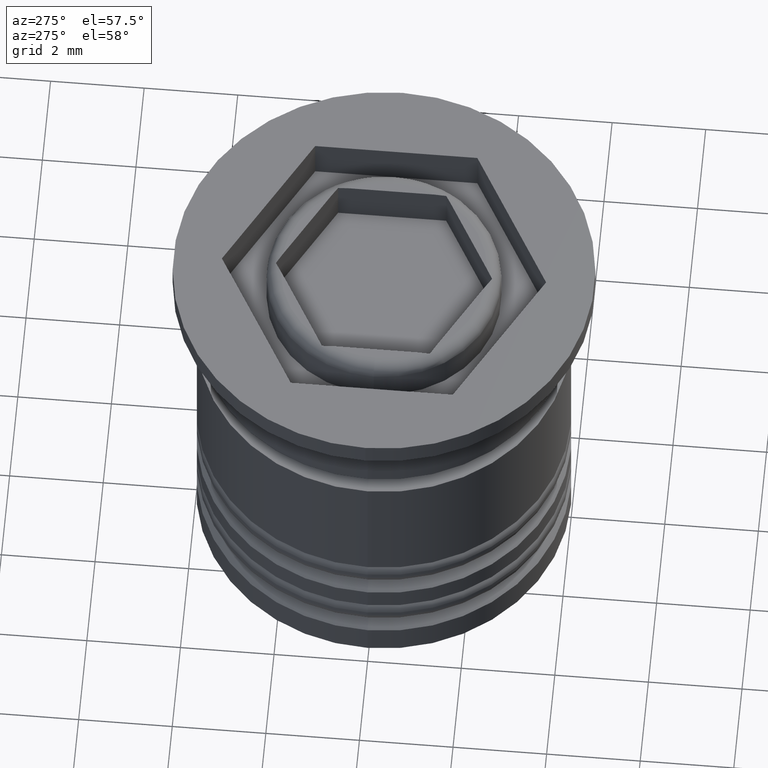
[diagram: clean part render]
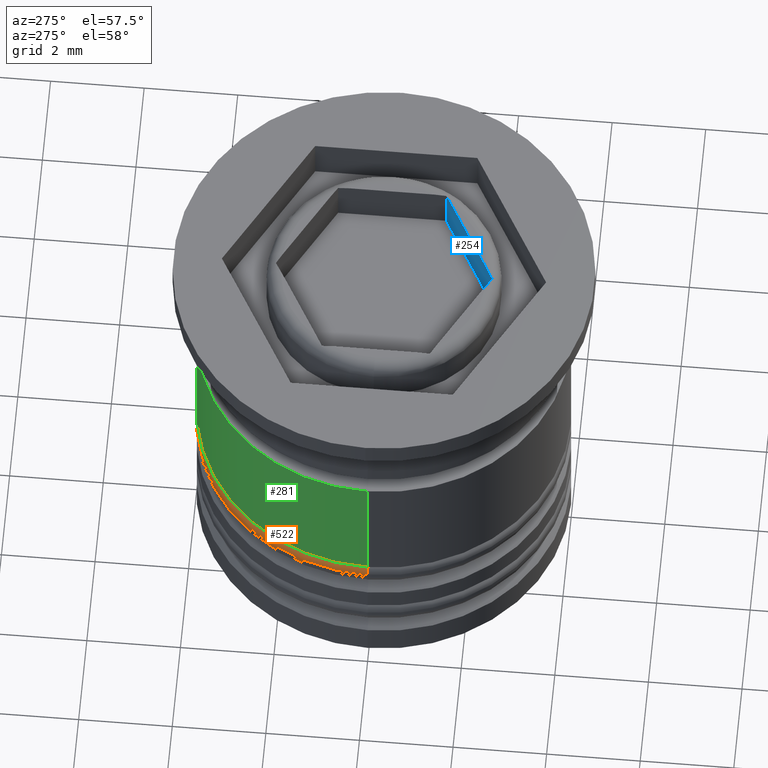
[diagram: same view with three faces highlighted in distinct colors, each labeled with its STEP entity id]
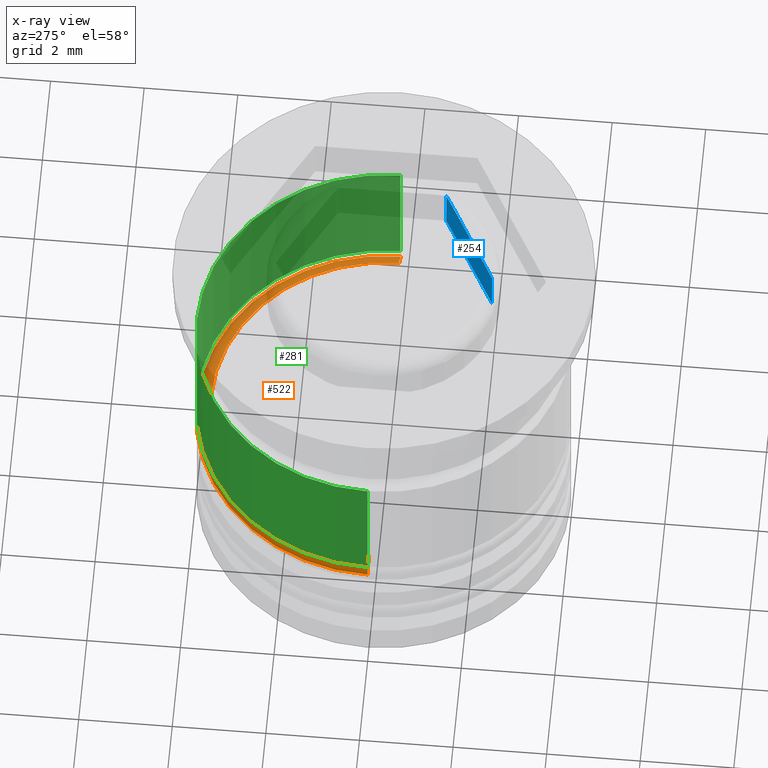
[diagram: x-ray of the same camera — body ghosted, the three highlighted faces saturated]
A machine part, auxiliary view with three faces highlighted in distinct colors.
The next image is the same camera in x-ray (body ghosted, the three faces saturated) — at least one of them is partly hidden behind the body in this view.
Their STEP definitions:

[orange] entity #522 — the highlighted toroidal blend (fillet) surface has major radius 3.7 mm and minor (blend) radius 0.3 mm.
#6 = ORIENTED_EDGE ( 'NONE', *, *, #51, .F. ) ;
#23 = AXIS2_PLACEMENT_3D ( 'NONE', #1819, #1844, #1651 ) ;
#51 = EDGE_CURVE ( 'NONE', #825, #936, #1398, .T. ) ;
#73 = DIRECTION ( 'NONE',  ( -1.000000000000000000, 0.000000000000000000, 0.000000000000000000 ) ) ;
#111 = DIRECTION ( 'NONE',  ( -0.000000000000000000, -1.000000000000000000, -0.000000000000000000 ) ) ;
#151 = CIRCLE ( 'NONE', #1599, 3.700000000000001066 ) ;
#177 = EDGE_CURVE ( 'NONE', #837, #825, #644, .T. ) ;
#293 = ORIENTED_EDGE ( 'NONE', *, *, #177, .F. ) ;
#296 = EDGE_LOOP ( 'NONE', ( #334, #467, #6, #293 ) ) ;
#334 = ORIENTED_EDGE ( 'NONE', *, *, #1363, .F. ) ;
#345 = EDGE_CURVE ( 'NONE', #376, #936, #1175, .T. ) ;
#376 = VERTEX_POINT ( 'NONE', #1640 ) ;
#467 = ORIENTED_EDGE ( 'NONE', *, *, #345, .T. ) ;
#477 = AXIS2_PLACEMENT_3D ( 'NONE', #533, #111, #1957 ) ;
#522 = ADVANCED_FACE ( 'NONE', ( #1858 ), #1469, .T. ) ;
#523 = CARTESIAN_POINT ( 'NONE',  ( 0.000000000000000000, 0.000000000000000000, -5.799999999999999822 ) ) ;
#533 = CARTESIAN_POINT ( 'NONE',  ( -3.700000000000001066, 0.000000000000000000, -5.799999999999999822 ) ) ;
#546 = AXIS2_PLACEMENT_3D ( 'NONE', #1889, #1728, #950 ) ;
#644 = CIRCLE ( 'NONE', #477, 0.2999999999999999334 ) ;
#807 = CARTESIAN_POINT ( 'NONE',  ( 4.000000000000000888, 0.000000000000000000, -5.799999999999999822 ) ) ;
#825 = VERTEX_POINT ( 'NONE', #2007 ) ;
#832 = CARTESIAN_POINT ( 'NONE',  ( 0.000000000000000000, 0.000000000000000000, -5.500000000000000000 ) ) ;
#837 = VERTEX_POINT ( 'NONE', #1687 ) ;
#936 = VERTEX_POINT ( 'NONE', #807 ) ;
#950 = DIRECTION ( 'NONE',  ( -1.000000000000000000, -1.224646799147353207E-16, 0.000000000000000000 ) ) ;
#1175 = CIRCLE ( 'NONE', #546, 0.2999999999999999334 ) ;
#1363 = EDGE_CURVE ( 'NONE', #376, #837, #151, .T. ) ;
#1398 = CIRCLE ( 'NONE', #23, 4.000000000000000888 ) ;
#1469 = TOROIDAL_SURFACE ( 'NONE', #1904, 3.700000000000001066, 0.2999999999999999889 ) ;
#1479 = DIRECTION ( 'NONE',  ( 0.000000000000000000, 0.000000000000000000, -1.000000000000000000 ) ) ;
#1599 = AXIS2_PLACEMENT_3D ( 'NONE', #832, #1746, #73 ) ;
#1640 = CARTESIAN_POINT ( 'NONE',  ( 3.700000000000001066, 4.714890176717310501E-16, -5.500000000000000000 ) ) ;
#1651 = DIRECTION ( 'NONE',  ( -1.000000000000000000, 0.000000000000000000, 0.000000000000000000 ) ) ;
#1687 = CARTESIAN_POINT ( 'NONE',  ( -3.700000000000001066, 0.000000000000000000, -5.500000000000000000 ) ) ;
#1728 = DIRECTION ( 'NONE',  ( -1.224646799147353207E-16, 1.000000000000000000, 0.000000000000000000 ) ) ;
#1746 = DIRECTION ( 'NONE',  ( -0.000000000000000000, -0.000000000000000000, 1.000000000000000000 ) ) ;
#1819 = CARTESIAN_POINT ( 'NONE',  ( 0.000000000000000000, 0.000000000000000000, -5.799999999999999822 ) ) ;
#1844 = DIRECTION ( 'NONE',  ( 0.000000000000000000, 0.000000000000000000, -1.000000000000000000 ) ) ;
#1858 = FACE_OUTER_BOUND ( 'NONE', #296, .T. ) ;
#1889 = CARTESIAN_POINT ( 'NONE',  ( 3.700000000000001066, 4.531193156845208173E-16, -5.799999999999999822 ) ) ;
#1904 = AXIS2_PLACEMENT_3D ( 'NONE', #523, #1479, #1970 ) ;
#1957 = DIRECTION ( 'NONE',  ( 0.000000000000000000, 0.000000000000000000, -1.000000000000000000 ) ) ;
#1970 = DIRECTION ( 'NONE',  ( -1.000000000000000000, 0.000000000000000000, 0.000000000000000000 ) ) ;
#2007 = CARTESIAN_POINT ( 'NONE',  ( -4.000000000000000888, 4.898587196589413815E-16, -5.799999999999999822 ) ) ;

[blue] entity #254 — the highlighted planar face has unit normal (0.5, -0.866, 0).
#110 = B_SPLINE_CURVE_WITH_KNOTS ( 'NONE', 3,
 ( #912, #1888, #1911, #322 ),
 .UNSPECIFIED., .F., .F.,
 ( 4, 4 ),
 ( 9.333598368916043247E-21, 0.0002390796478456414507 ),
 .UNSPECIFIED. ) ;
#137 = LINE ( 'NONE', #429, #1065 ) ;
#169 = DIRECTION ( 'NONE',  ( -0.8660254037844387076, -0.4999999999999998890, 0.000000000000000000 ) ) ;
#194 = ORIENTED_EDGE ( 'NONE', *, *, #1538, .T. ) ;
#243 = EDGE_CURVE ( 'NONE', #1723, #959, #137, .T. ) ;
#254 = ADVANCED_FACE ( 'NONE', ( #570 ), #2011, .F. ) ;
#257 = DIRECTION ( 'NONE',  ( 0.8660254037844387076, 0.4999999999999998890, 0.000000000000000000 ) ) ;
#258 = B_SPLINE_CURVE_WITH_KNOTS ( 'NONE', 3,
 ( #818, #1733, #484, #1111 ),
 .UNSPECIFIED., .F., .F.,
 ( 4, 4 ),
 ( 1.212469994430350721E-20, 0.0002390796478456412881 ),
 .UNSPECIFIED. ) ;
#322 = CARTESIAN_POINT ( 'NONE',  ( 2.000000000000000000, -1.154700538379252128, -0.02065898188042571137 ) ) ;
#343 = VERTEX_POINT ( 'NONE', #470 ) ;
#377 = CARTESIAN_POINT ( 'NONE',  ( 2.000000000000000000, -1.154700538379252128, -0.02065898188042571137 ) ) ;
#400 = LINE ( 'NONE', #1834, #1275 ) ;
#429 = CARTESIAN_POINT ( 'NONE',  ( -2.168404344971008868E-16, -2.309401076758503368, -7.110100926607787919 ) ) ;
#470 = CARTESIAN_POINT ( 'NONE',  ( 0.2062746066806211975, -2.190308377064462242, 0.000000000000000000 ) ) ;
#484 = CARTESIAN_POINT ( 'NONE',  ( 0.1369991406722237681, -2.230304586012647583, -3.386240097523933451E-18 ) ) ;
#493 = LINE ( 'NONE', #960, #933 ) ;
#552 = CARTESIAN_POINT ( 'NONE',  ( -2.168404344971008868E-16, -2.309401076758503368, -0.02065898188042571137 ) ) ;
#570 = FACE_OUTER_BOUND ( 'NONE', #1720, .T. ) ;
#594 = ORIENTED_EDGE ( 'NONE', *, *, #1301, .F. ) ;
#601 = VECTOR ( 'NONE', #1555, 1000.000000000000000 ) ;
#606 = AXIS2_PLACEMENT_3D ( 'NONE', #1522, #932, #257 ) ;
#616 = DIRECTION ( 'NONE',  ( -0.000000000000000000, -0.000000000000000000, 1.000000000000000000 ) ) ;
#669 = VERTEX_POINT ( 'NONE', #1679 ) ;
#733 = ORIENTED_EDGE ( 'NONE', *, *, #1383, .T. ) ;
#818 = CARTESIAN_POINT ( 'NONE',  ( -2.168404344971008868E-16, -2.309401076758503368, -0.02065898188042571137 ) ) ;
#912 = CARTESIAN_POINT ( 'NONE',  ( 1.793725393319378192, -1.273793238073292811, 0.000000000000000000 ) ) ;
#918 = VERTEX_POINT ( 'NONE', #377 ) ;
#932 = DIRECTION ( 'NONE',  ( 0.4999999999999998890, -0.8660254037844387076, 0.000000000000000000 ) ) ;
#933 = VECTOR ( 'NONE', #169, 1000.000000000000114 ) ;
#959 = VERTEX_POINT ( 'NONE', #552 ) ;
#960 = CARTESIAN_POINT ( 'NONE',  ( -2.168404344971008868E-16, -2.309401076758503368, -1.000000000000000000 ) ) ;
#1041 = CARTESIAN_POINT ( 'NONE',  ( 1.793725393319378192, -1.273793238073292811, 0.000000000000000000 ) ) ;
#1047 = DIRECTION ( 'NONE',  ( 0.8660254037844387076, 0.4999999999999998890, 0.000000000000000000 ) ) ;
#1065 = VECTOR ( 'NONE', #616, 1000.000000000000000 ) ;
#1111 = CARTESIAN_POINT ( 'NONE',  ( 0.2062746066806211975, -2.190308377064462242, 0.000000000000000000 ) ) ;
#1112 = ORIENTED_EDGE ( 'NONE', *, *, #1266, .T. ) ;
#1148 = EDGE_CURVE ( 'NONE', #669, #1723, #493, .T. ) ;
#1266 = EDGE_CURVE ( 'NONE', #1976, #918, #110, .T. ) ;
#1275 = VECTOR ( 'NONE', #1047, 1000.000000000000000 ) ;
#1301 = EDGE_CURVE ( 'NONE', #669, #918, #2010, .T. ) ;
#1383 = EDGE_CURVE ( 'NONE', #343, #1976, #400, .T. ) ;
#1522 = CARTESIAN_POINT ( 'NONE',  ( -2.168404344971008868E-16, -2.309401076758503368, -7.110100926607787919 ) ) ;
#1538 = EDGE_CURVE ( 'NONE', #959, #343, #258, .T. ) ;
#1544 = CARTESIAN_POINT ( 'NONE',  ( 2.000000000000000000, -1.154700538379252128, -7.110100926607787919 ) ) ;
#1555 = DIRECTION ( 'NONE',  ( -0.000000000000000000, -0.000000000000000000, 1.000000000000000000 ) ) ;
#1560 = ORIENTED_EDGE ( 'NONE', *, *, #243, .T. ) ;
#1679 = CARTESIAN_POINT ( 'NONE',  ( 2.000000000000000000, -1.154700538379251906, -1.000000000000000000 ) ) ;
#1720 = EDGE_LOOP ( 'NONE', ( #1560, #194, #733, #1112, #594, #1905 ) ) ;
#1723 = VERTEX_POINT ( 'NONE', #1956 ) ;
#1733 = CARTESIAN_POINT ( 'NONE',  ( 0.06811851271951849252, -2.270072835103092324, -0.005256474890640268696 ) ) ;
#1834 = CARTESIAN_POINT ( 'NONE',  ( -2.168404344971008868E-16, -2.309401076758503368, 0.000000000000000000 ) ) ;
#1888 = CARTESIAN_POINT ( 'NONE',  ( 1.863000859327775816, -1.233797029125107469, 0.000000000000000000 ) ) ;
#1905 = ORIENTED_EDGE ( 'NONE', *, *, #1148, .T. ) ;
#1911 = CARTESIAN_POINT ( 'NONE',  ( 1.931881487280481258, -1.194028780034663173, -0.005256474890640258288 ) ) ;
#1956 = CARTESIAN_POINT ( 'NONE',  ( -4.336808689942017736E-16, -2.309401076758503368, -1.000000000000000000 ) ) ;
#1976 = VERTEX_POINT ( 'NONE', #1041 ) ;
#2010 = LINE ( 'NONE', #1544, #601 ) ;
#2011 = PLANE ( 'NONE',  #606 ) ;

[green] entity #281 — the highlighted cylindrical surface (partial cylindrical patch) has radius 4 mm, axis along (-0, -0, 1).
#39 = VERTEX_POINT ( 'NONE', #82 ) ;
#82 = CARTESIAN_POINT ( 'NONE',  ( 4.000000000000000000, 0.000000000000000000, -2.500000000000001776 ) ) ;
#104 = DIRECTION ( 'NONE',  ( 1.000000000000000000, 0.000000000000000000, 0.000000000000000000 ) ) ;
#117 = FACE_OUTER_BOUND ( 'NONE', #771, .T. ) ;
#261 = DIRECTION ( 'NONE',  ( -0.000000000000000000, -0.000000000000000000, 1.000000000000000000 ) ) ;
#281 = ADVANCED_FACE ( 'NONE', ( #117 ), #582, .T. ) ;
#420 = DIRECTION ( 'NONE',  ( 1.000000000000000000, 0.000000000000000000, 0.000000000000000000 ) ) ;
#460 = CARTESIAN_POINT ( 'NONE',  ( 4.000000000000000000, 0.000000000000000000, 0.000000000000000000 ) ) ;
#535 = CARTESIAN_POINT ( 'NONE',  ( 4.000000000000000888, 0.000000000000000000, -5.500000000000000000 ) ) ;
#582 = CYLINDRICAL_SURFACE ( 'NONE', #1838, 4.000000000000000000 ) ;
#682 = EDGE_CURVE ( 'NONE', #1614, #1915, #1605, .T. ) ;
#683 = CARTESIAN_POINT ( 'NONE',  ( -4.000000000000000888, 4.898587196589413815E-16, -5.500000000000000000 ) ) ;
#696 = CARTESIAN_POINT ( 'NONE',  ( 0.000000000000000000, 0.000000000000000000, -2.500000000000001776 ) ) ;
#699 = ORIENTED_EDGE ( 'NONE', *, *, #1954, .F. ) ;
#771 = EDGE_LOOP ( 'NONE', ( #1492, #1151, #699, #1284 ) ) ;
#773 = EDGE_CURVE ( 'NONE', #1915, #855, #1681, .T. ) ;
#788 = LINE ( 'NONE', #460, #1467 ) ;
#809 = VECTOR ( 'NONE', #898, 1000.000000000000000 ) ;
#855 = VERTEX_POINT ( 'NONE', #1317 ) ;
#880 = AXIS2_PLACEMENT_3D ( 'NONE', #1200, #261, #420 ) ;
#898 = DIRECTION ( 'NONE',  ( -0.000000000000000000, -0.000000000000000000, 1.000000000000000000 ) ) ;
#921 = DIRECTION ( 'NONE',  ( -0.000000000000000000, -0.000000000000000000, 1.000000000000000000 ) ) ;
#1151 = ORIENTED_EDGE ( 'NONE', *, *, #773, .T. ) ;
#1167 = DIRECTION ( 'NONE',  ( -0.000000000000000000, -0.000000000000000000, 1.000000000000000000 ) ) ;
#1177 = EDGE_CURVE ( 'NONE', #1614, #39, #788, .T. ) ;
#1200 = CARTESIAN_POINT ( 'NONE',  ( 0.000000000000000000, 0.000000000000000000, -5.500000000000000000 ) ) ;
#1284 = ORIENTED_EDGE ( 'NONE', *, *, #1177, .F. ) ;
#1317 = CARTESIAN_POINT ( 'NONE',  ( -4.000000000000000000, 4.898587196589412829E-16, -2.500000000000001776 ) ) ;
#1379 = DIRECTION ( 'NONE',  ( 1.000000000000000000, 0.000000000000000000, 0.000000000000000000 ) ) ;
#1467 = VECTOR ( 'NONE', #921, 1000.000000000000000 ) ;
#1492 = ORIENTED_EDGE ( 'NONE', *, *, #682, .T. ) ;
#1508 = CARTESIAN_POINT ( 'NONE',  ( -4.000000000000000000, 4.898587196589412829E-16, 0.000000000000000000 ) ) ;
#1536 = CARTESIAN_POINT ( 'NONE',  ( 0.000000000000000000, 0.000000000000000000, 0.000000000000000000 ) ) ;
#1605 = CIRCLE ( 'NONE', #880, 4.000000000000000888 ) ;
#1614 = VERTEX_POINT ( 'NONE', #535 ) ;
#1681 = LINE ( 'NONE', #1508, #809 ) ;
#1730 = AXIS2_PLACEMENT_3D ( 'NONE', #696, #1167, #104 ) ;
#1838 = AXIS2_PLACEMENT_3D ( 'NONE', #1536, #1870, #1379 ) ;
#1865 = CIRCLE ( 'NONE', #1730, 4.000000000000000000 ) ;
#1870 = DIRECTION ( 'NONE',  ( -0.000000000000000000, -0.000000000000000000, 1.000000000000000000 ) ) ;
#1915 = VERTEX_POINT ( 'NONE', #683 ) ;
#1954 = EDGE_CURVE ( 'NONE', #39, #855, #1865, .T. ) ;